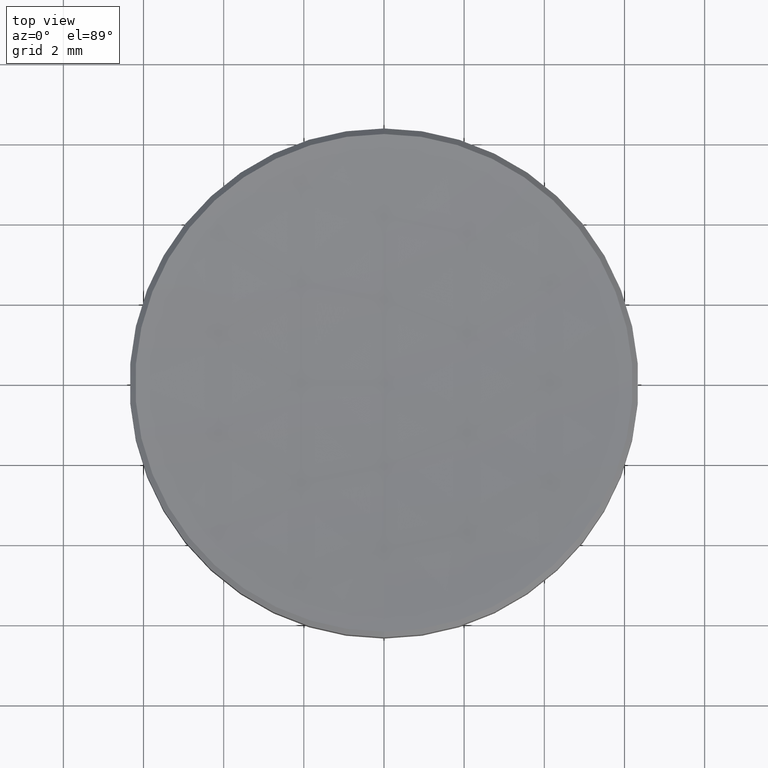
[diagram: clean part render]
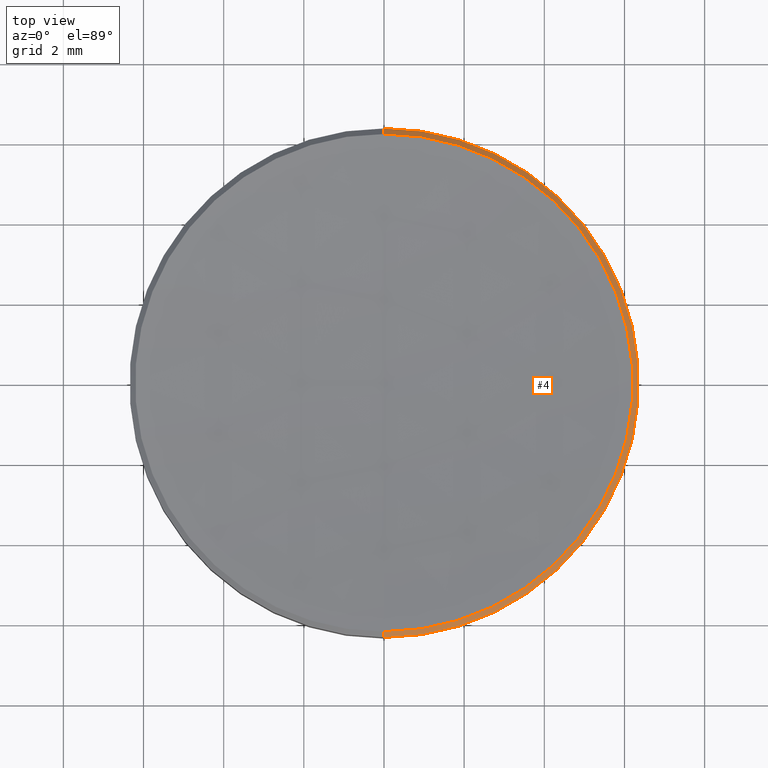
[diagram: same view with one face highlighted and labeled with its STEP entity id]
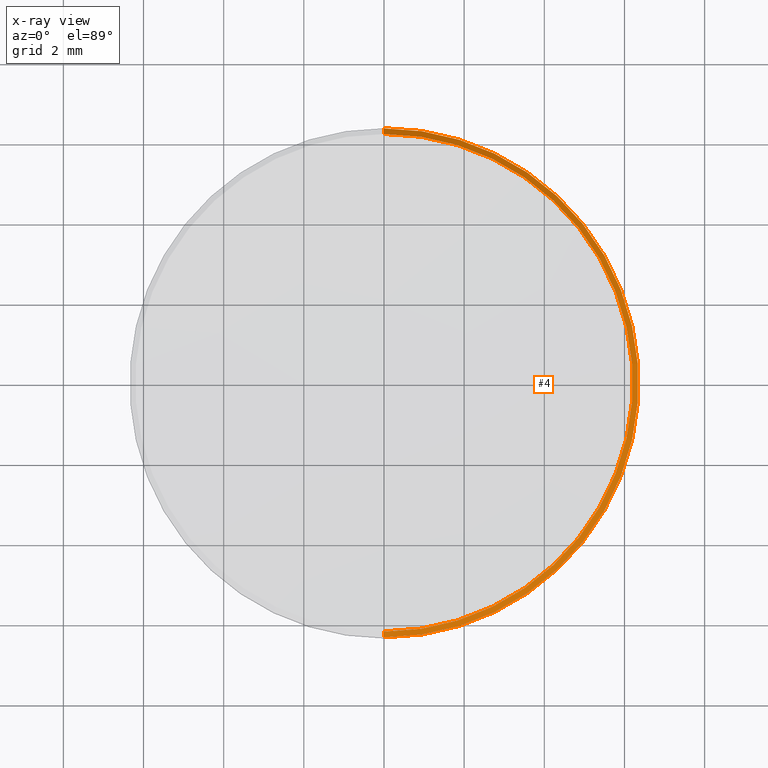
[diagram: x-ray of the same camera — body ghosted, the highlighted face saturated]
A machine part, top view. The second image highlights one B-rep face of the part: STEP entity #4.
The next image is the same camera in x-ray: the body ghosted, the highlighted face saturated — about 0% of this face is hidden behind the body in this view.
In plain terms, the highlighted conical surface has half-angle 45 deg.
Its self-contained STEP definition (entity closure, byte-faithful):
#4 = ADVANCED_FACE ( 'NONE', ( #202 ), #42, .T. ) ;
#11 = CARTESIAN_POINT ( 'NONE',  ( 3.061616997868383000E-017, -0.2500000000000000000, 0.06036624826491244300 ) ) ;
#13 = DIRECTION ( 'NONE',  ( 8.659560562354985900E-017, -0.7071067811865516800, -0.7071067811865431300 ) ) ;
#22 = CARTESIAN_POINT ( 'NONE',  ( 0.0000000000000000000, -2.649717242950314800E-018, 0.06593401819551519800 ) ) ;
#30 = CIRCLE ( 'NONE', #315, 0.2500000000000000000 ) ;
#38 = CARTESIAN_POINT ( 'NONE',  ( 0.0000000000000000000, 0.2500000000000000000, 0.06036624826491252700 ) ) ;
#42 = CONICAL_SURFACE ( 'NONE', #162, 0.2500000000000000000, 0.7853981633974545000 ) ;
#57 = CARTESIAN_POINT ( 'NONE',  ( 0.0000000000000000000, -1.626968277904726200E-018, 0.06036624826491248500 ) ) ;
#64 = AXIS2_PLACEMENT_3D ( 'NONE', #22, #65, #250 ) ;
#65 = DIRECTION ( 'NONE',  ( -0.0000000000000000000, -1.836909530733566100E-016, 1.000000000000000000 ) ) ;
#69 = ORIENTED_EDGE ( 'NONE', *, *, #120, .T. ) ;
#71 = VERTEX_POINT ( 'NONE', #117 ) ;
#83 = ORIENTED_EDGE ( 'NONE', *, *, #151, .F. ) ;
#100 = ORIENTED_EDGE ( 'NONE', *, *, #103, .T. ) ;
#103 = EDGE_CURVE ( 'NONE', #270, #126, #30, .T. ) ;
#113 = CIRCLE ( 'NONE', #64, 0.2444322300693972100 ) ;
#117 = CARTESIAN_POINT ( 'NONE',  ( -2.993431481629359100E-017, -0.2444322300693961800, 0.06593401819551519800 ) ) ;
#119 = CARTESIAN_POINT ( 'NONE',  ( 0.0000000000000000000, -1.626968277904726200E-018, 0.06036624826491248500 ) ) ;
#120 = EDGE_CURVE ( 'NONE', #71, #270, #134, .T. ) ;
#122 = LINE ( 'NONE', #38, #218 ) ;
#126 = VERTEX_POINT ( 'NONE', #229 ) ;
#129 = VECTOR ( 'NONE', #13, 39.37007874015748900 ) ;
#134 = LINE ( 'NONE', #11, #129 ) ;
#151 = EDGE_CURVE ( 'NONE', #71, #212, #113, .T. ) ;
#162 = AXIS2_PLACEMENT_3D ( 'NONE', #57, #215, #252 ) ;
#164 = DIRECTION ( 'NONE',  ( 0.0000000000000000000, 0.7071067811865520100, -0.7071067811865430200 ) ) ;
#201 = CARTESIAN_POINT ( 'NONE',  ( 0.0000000000000000000, 0.2444322300693965700, 0.06593401819551524000 ) ) ;
#202 = FACE_OUTER_BOUND ( 'NONE', #321, .T. ) ;
#209 = DIRECTION ( 'NONE',  ( -0.0000000000000000000, -1.836909530733566100E-016, 1.000000000000000000 ) ) ;
#212 = VERTEX_POINT ( 'NONE', #201 ) ;
#215 = DIRECTION ( 'NONE',  ( 0.0000000000000000000, 1.836909530733566100E-016, -1.000000000000000000 ) ) ;
#218 = VECTOR ( 'NONE', #164, 39.37007874015748100 ) ;
#226 = DIRECTION ( 'NONE',  ( 0.0000000000000000000, -1.000000000000000000, -1.707404996040164500E-016 ) ) ;
#229 = CARTESIAN_POINT ( 'NONE',  ( 3.061616997868383000E-017, 0.2500000000000000000, 0.06036624826491252700 ) ) ;
#240 = CARTESIAN_POINT ( 'NONE',  ( 0.0000000000000000000, -0.2500000000000000000, 0.06036624826491244300 ) ) ;
#250 = DIRECTION ( 'NONE',  ( 0.0000000000000000000, -1.000000000000000000, -1.746296913827006200E-016 ) ) ;
#252 = DIRECTION ( 'NONE',  ( 0.0000000000000000000, 1.000000000000000000, 1.707404996040164500E-016 ) ) ;
#265 = EDGE_CURVE ( 'NONE', #212, #126, #122, .T. ) ;
#270 = VERTEX_POINT ( 'NONE', #240 ) ;
#295 = ORIENTED_EDGE ( 'NONE', *, *, #265, .F. ) ;
#315 = AXIS2_PLACEMENT_3D ( 'NONE', #119, #209, #226 ) ;
#321 = EDGE_LOOP ( 'NONE', ( #83, #69, #100, #295 ) ) ;